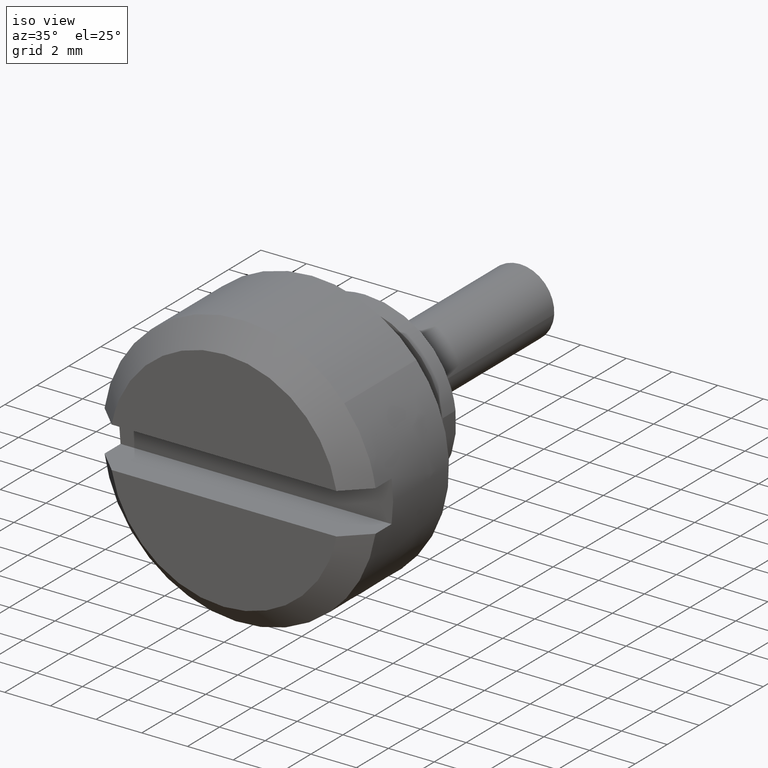
[diagram: clean part render]
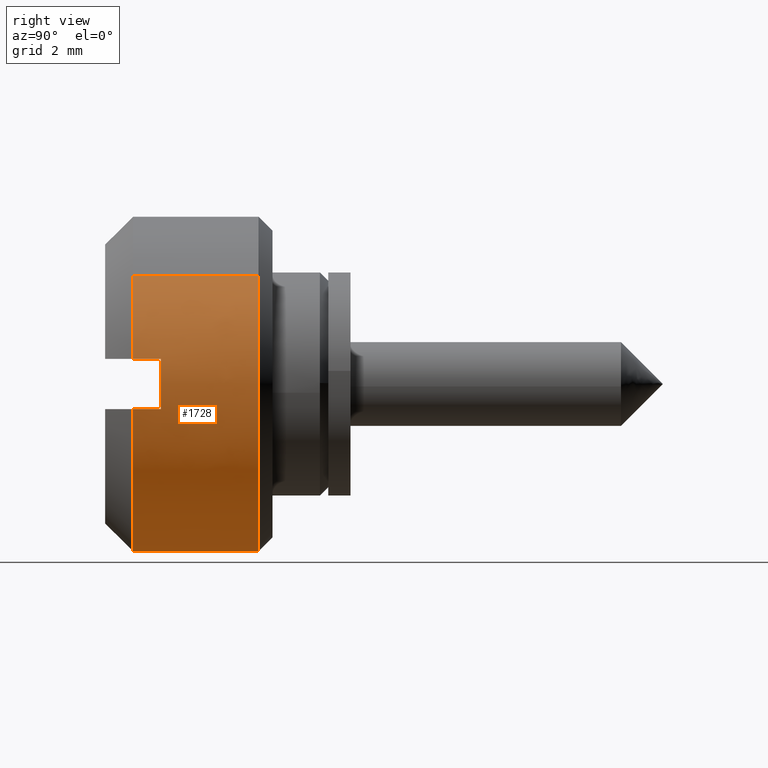
[diagram: tour spotlight — one face highlighted and labeled with its STEP entity id]
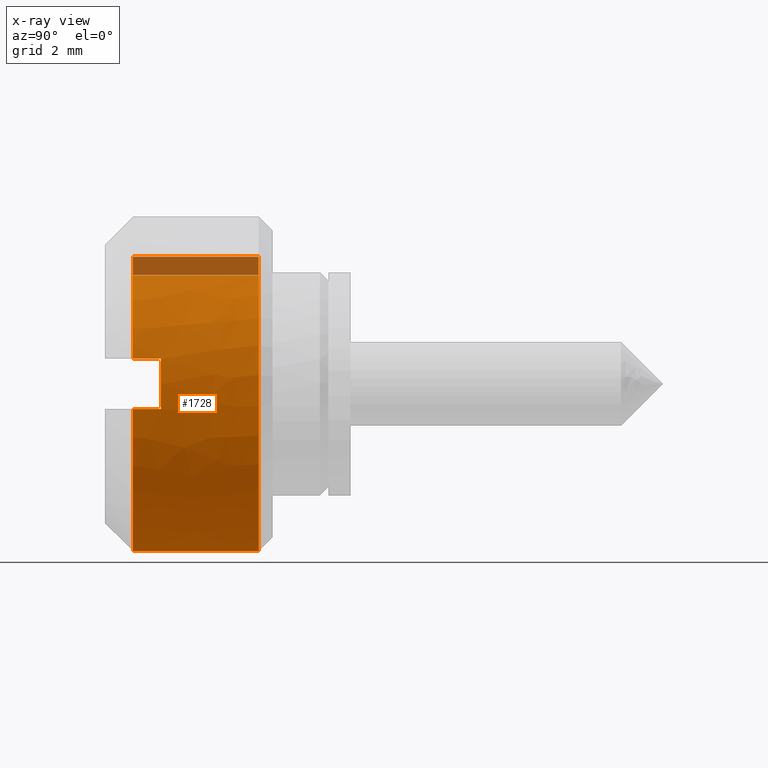
[diagram: x-ray of the same camera — body ghosted, this tour face saturated]
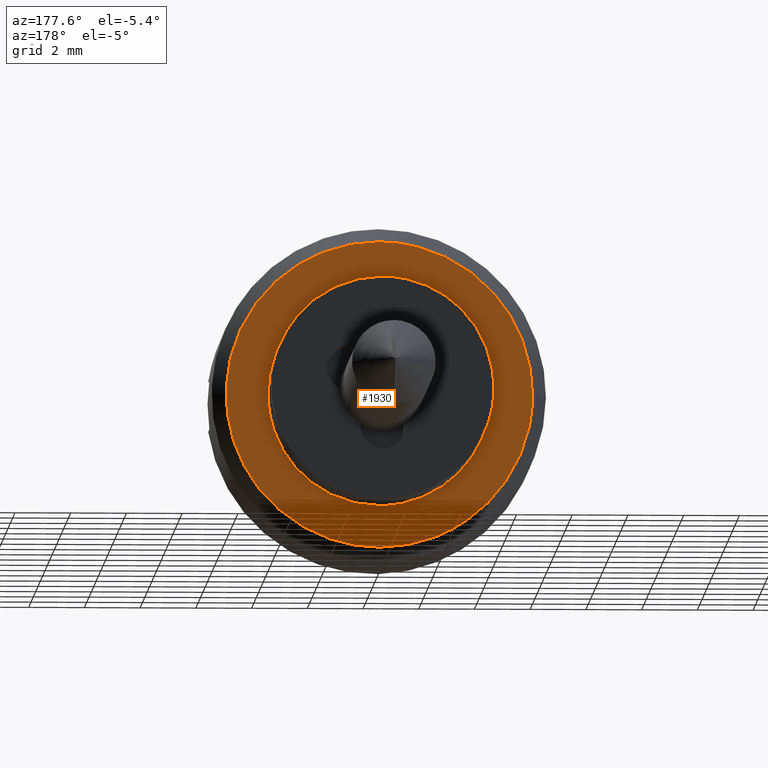
[diagram: tour spotlight — one face highlighted and labeled with its STEP entity id]
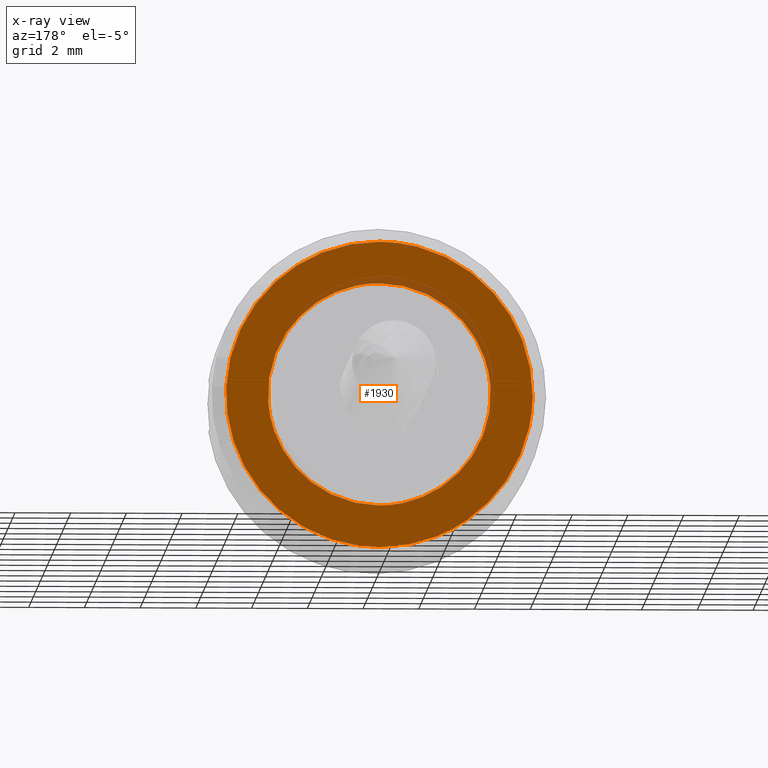
[diagram: x-ray of the same camera — body ghosted, this tour face saturated]
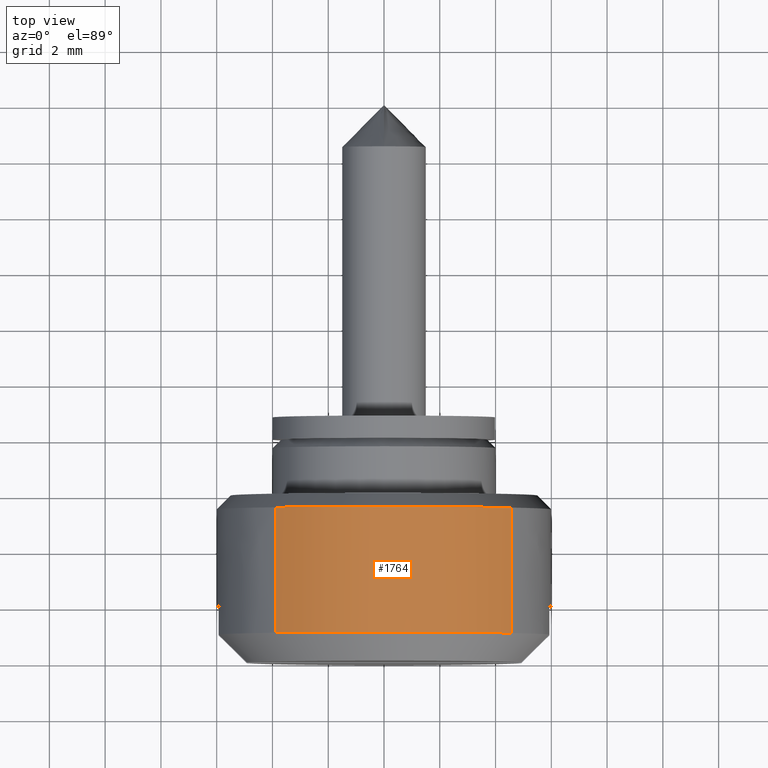
[diagram: tour spotlight — one face highlighted and labeled with its STEP entity id]
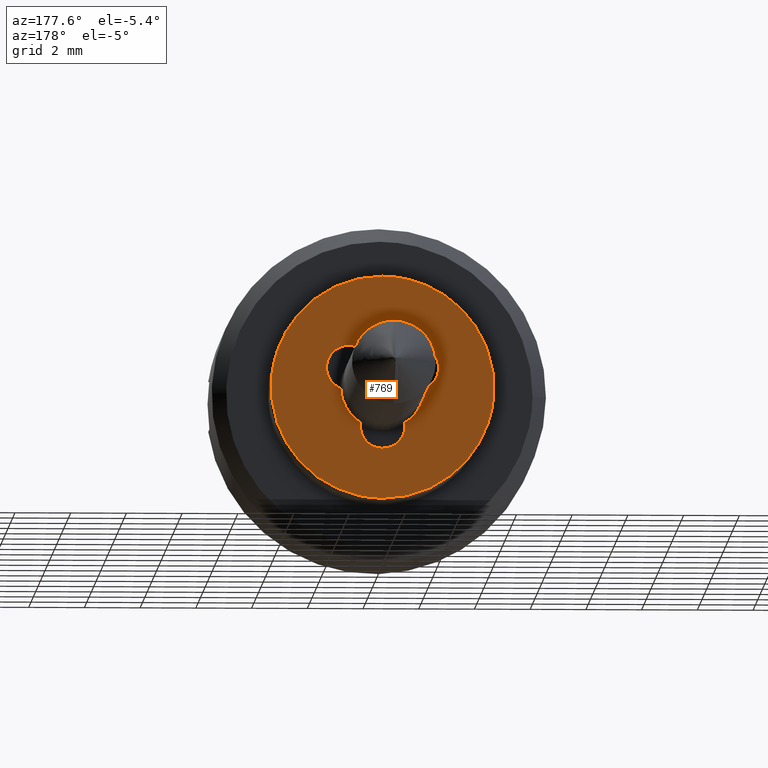
[diagram: tour spotlight — one face highlighted and labeled with its STEP entity id]
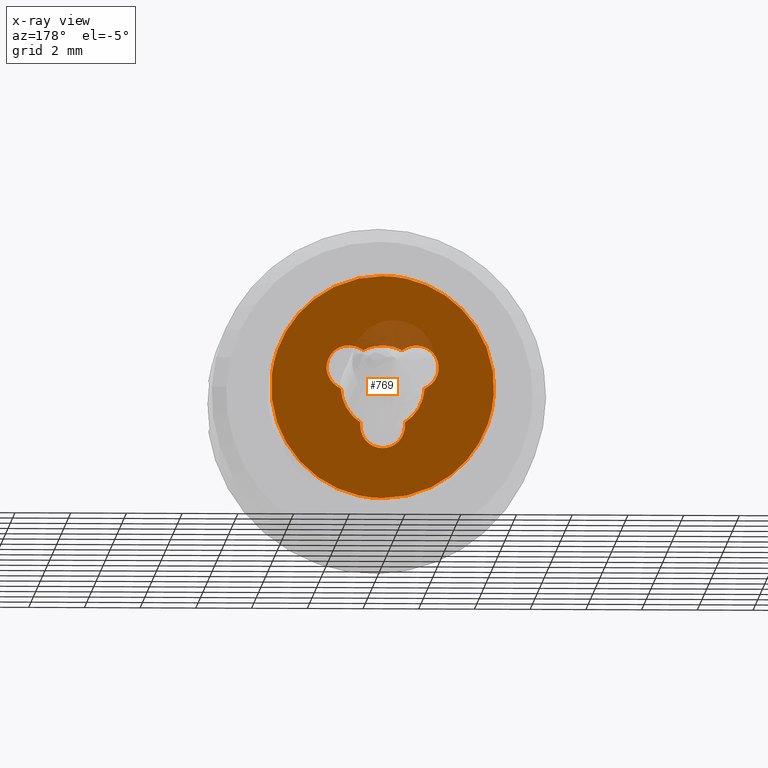
[diagram: x-ray of the same camera — body ghosted, this tour face saturated]
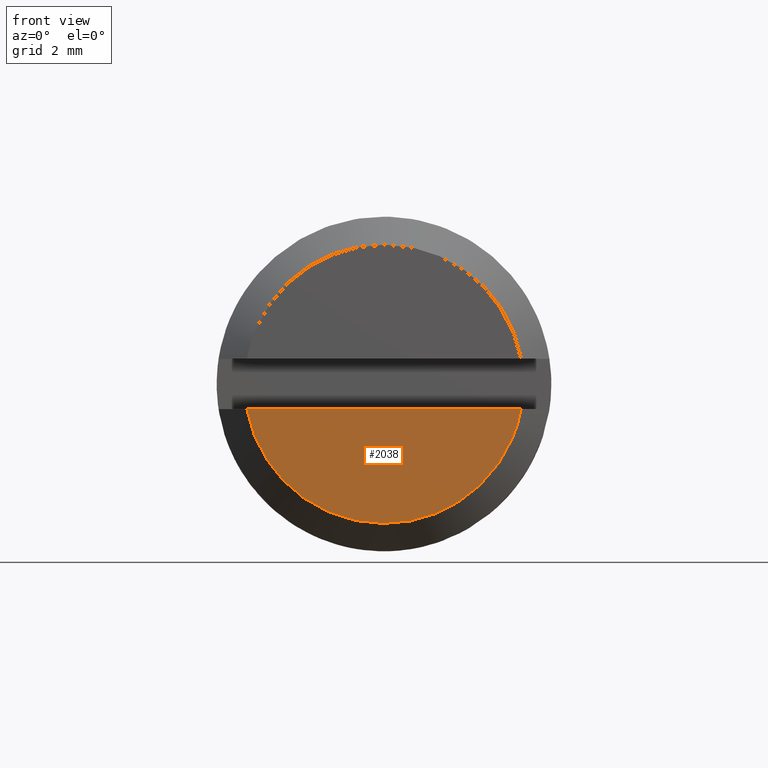
[diagram: tour spotlight — one face highlighted and labeled with its STEP entity id]
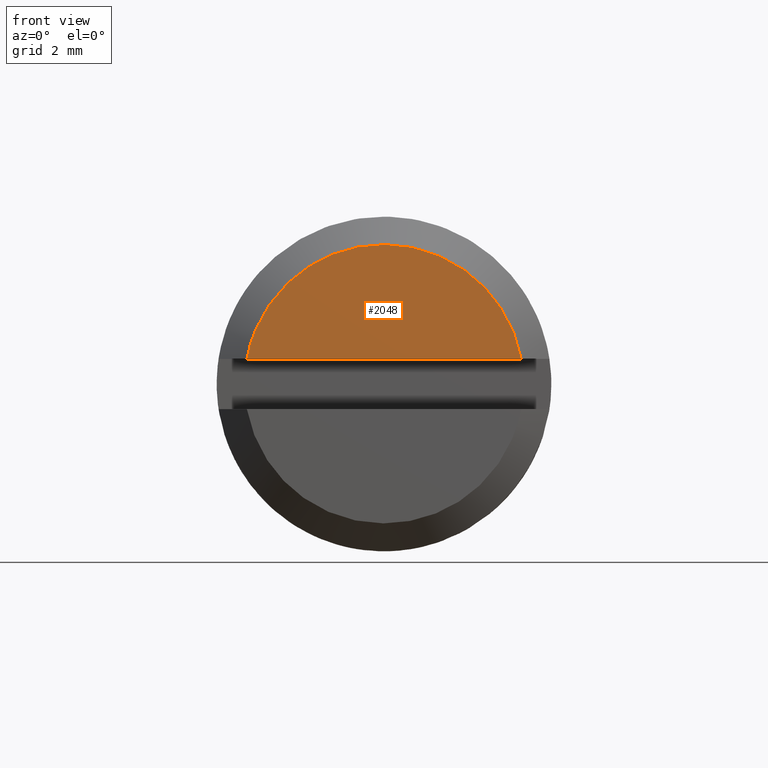
[diagram: tour spotlight — one face highlighted and labeled with its STEP entity id]
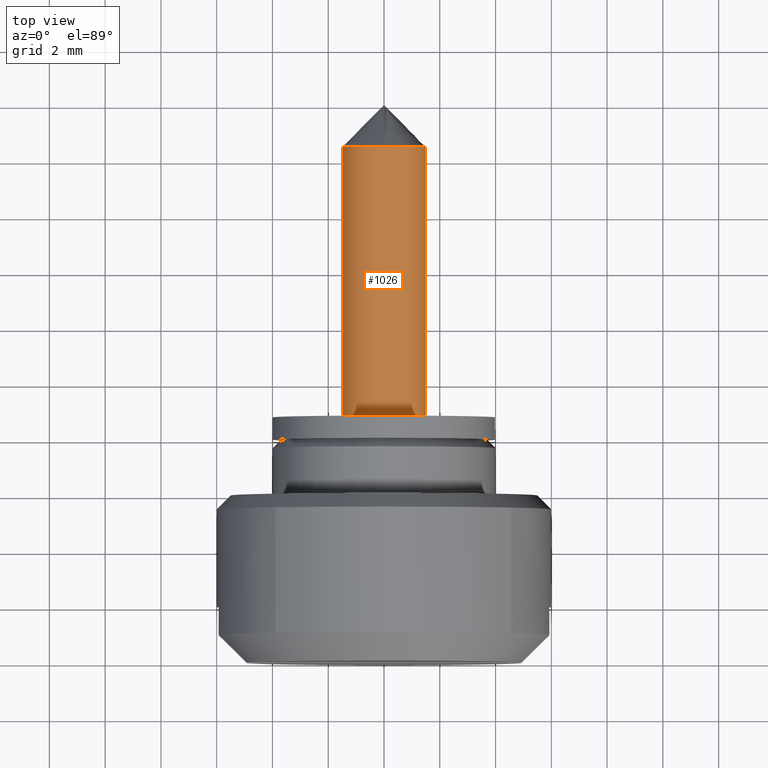
[diagram: tour spotlight — one face highlighted and labeled with its STEP entity id]
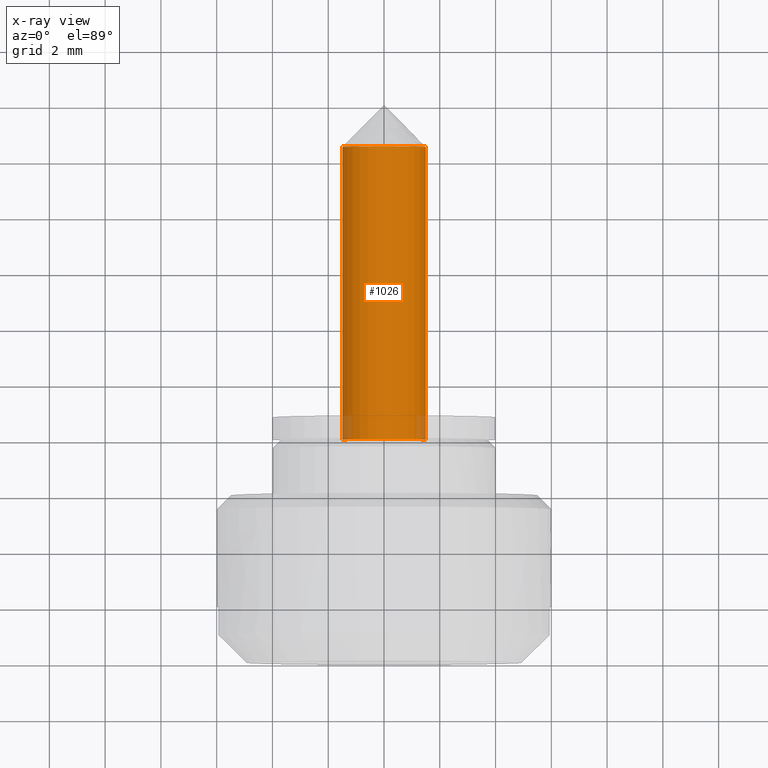
[diagram: x-ray of the same camera — body ghosted, this tour face saturated]
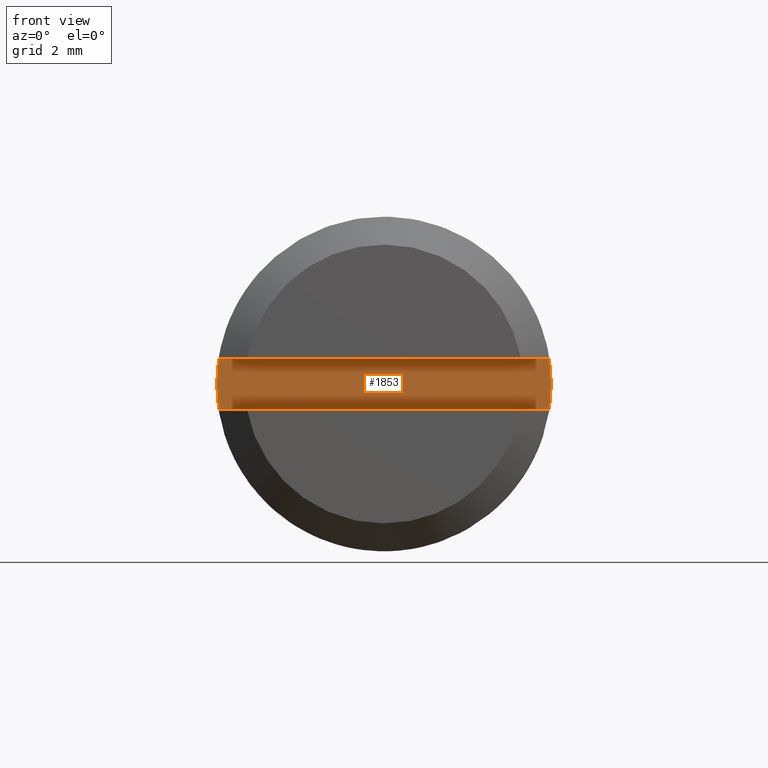
[diagram: tour spotlight — one face highlighted and labeled with its STEP entity id]
A machine part: a face-by-face anatomy tour. The part has 37 B-rep faces; the first image is the clean iso view, then the 8 largest visible faces are spotlighted one at a time (largest first), each with its STEP entity span.

Face 1 — right view, entity #1728. An x-ray twin of the same camera follows (body ghosted, this face saturated) — the face is partly hidden behind the body. In plain terms, the highlighted face is a freeform B-spline surface patch.
Definition (entity closure, byte-faithful):
#1269=CARTESIAN_POINT('',(-2.500000000000063,3.443907434926054,-4.913196676264802));
#1270=VERTEX_POINT('',#1269);
#1271=CARTESIAN_POINT('',(-2.500000000000060,0.0,-5.999999999999838));
#1272=VERTEX_POINT('',#1271);
#1273=CARTESIAN_POINT('',(-2.500000000000063,3.443907434926055,-4.913196676264802));
#1274=CARTESIAN_POINT('',(-2.500000000000060,1.893436471689136,-5.999999999999838));
#1275=CARTESIAN_POINT('',(-2.500000000000060,0.0,-5.999999999999838));
#1283=(BOUNDED_CURVE()B_SPLINE_CURVE(2,(#1273,#1274,#1275),.UNSPECIFIED.,.F.,.U.)B_SPLINE_CURVE_WITH_KNOTS((3,3),(0.901326273797124,1.0),.UNSPECIFIED.)CURVE()GEOMETRIC_REPRESENTATION_ITEM()RATIONAL_B_SPLINE_CURVE((0.860049271925870,0.884396538880490,1.0))REPRESENTATION_ITEM(''));
#1284=EDGE_CURVE('',#1270,#1272,#1283,.T.);
#1342=CARTESIAN_POINT('',(-2.500000000002377,5.999771538387197,-0.052359213007159));
#1343=VERTEX_POINT('',#1342);
#1349=CARTESIAN_POINT('',(-2.500000000000060,3.896687657252880,4.562436334001150));
#1350=VERTEX_POINT('',#1349);
#1351=CARTESIAN_POINT('',(-2.500000000000061,3.896687657252880,4.562436334001150));
#1352=CARTESIAN_POINT('',(-2.500000000000060,5.999999999999999,2.766038895498684));
#1353=CARTESIAN_POINT('',(-2.500000000000060,6.0,1.634248E-013));
#1354=CARTESIAN_POINT('',(-2.500000000000060,6.000000000000001,-0.026180104941118));
#1355=CARTESIAN_POINT('',(-2.500000000002377,5.999771538387197,-0.052359213007159));
#1363=(BOUNDED_CURVE()B_SPLINE_CURVE(2,(#1351,#1352,#1353,#1354,#1355),.UNSPECIFIED.,.F.,.U.)B_SPLINE_CURVE_WITH_KNOTS((3,2,3),(0.613143119433744,0.750000000000000,0.751539894335989),.UNSPECIFIED.)CURVE()GEOMETRIC_REPRESENTATION_ITEM()RATIONAL_B_SPLINE_CURVE((0.854871040955272,0.839662190936725,1.0,0.998195901565198,0.996414028098086))REPRESENTATION_ITEM(''));
#1364=EDGE_CURVE('',#1350,#1343,#1363,.T.);
#1381=CARTESIAN_POINT('',(-2.500000000000060,-4.562436122653258,3.896687904709550));
#1382=VERTEX_POINT('',#1381);
#1396=CARTESIAN_POINT('',(-2.500000000000060,0.0,-5.999999999999838));
#1397=CARTESIAN_POINT('',(-2.500000000000060,-6.0,-5.999999999999838));
#1398=CARTESIAN_POINT('',(-2.500000000000060,-6.0,1.634248E-013));
#1399=CARTESIAN_POINT('',(-2.500000000000061,-6.000000000000001,2.213516287035346));
#1400=CARTESIAN_POINT('',(-2.500000000000060,-4.562436122653258,3.896687904709550));
#1408=(BOUNDED_CURVE()B_SPLINE_CURVE(2,(#1396,#1397,#1398,#1399,#1400),.UNSPECIFIED.,.F.,.U.)B_SPLINE_CURVE_WITH_KNOTS((3,2,3),(0.0,0.250000000000000,0.363143135826714),.UNSPECIFIED.)CURVE()GEOMETRIC_REPRESENTATION_ITEM()RATIONAL_B_SPLINE_CURVE((1.0,0.707106781186548,1.0,0.867444571044264,0.854871037311786))REPRESENTATION_ITEM(''));
#1409=EDGE_CURVE('',#1272,#1382,#1408,.T.);
#1428=CARTESIAN_POINT('',(-2.500000000002377,5.999771538387197,-0.052359213007159));
#1429=CARTESIAN_POINT('',(-2.500000000000060,5.972821276211071,-3.140553374122430));
#1430=CARTESIAN_POINT('',(-2.500000000000062,3.443907434926053,-4.913196676264802));
#1438=(BOUNDED_CURVE()B_SPLINE_CURVE(2,(#1428,#1429,#1430),.UNSPECIFIED.,.F.,.U.)B_SPLINE_CURVE_WITH_KNOTS((3,3),(0.751539894335989,0.901326273797123),.UNSPECIFIED.)CURVE()GEOMETRIC_REPRESENTATION_ITEM()RATIONAL_B_SPLINE_CURVE((0.996414028098088,0.823090203820872,0.860049271925869))REPRESENTATION_ITEM(''));
#1439=EDGE_CURVE('',#1343,#1270,#1438,.T.);
#1583=CARTESIAN_POINT('',(-7.112500000000000,-4.562435793600185,3.896688289981264));
#1584=CARTESIAN_POINT('',(-7.112500000000000,-8.459124083581285,-0.665747503618921));
#1585=CARTESIAN_POINT('',(-7.112500000000000,-3.896688289981100,-4.562435793600021));
#1586=CARTESIAN_POINT('',(-7.112500000000000,0.665747503619084,-8.459124083581122));
#1587=CARTESIAN_POINT('',(-7.112500000000000,4.562435793600185,-3.896688289980937));
#1588=CARTESIAN_POINT('',(-7.112500000000000,8.459124083581285,0.665747503619248));
#1589=CARTESIAN_POINT('',(-7.112500000000000,3.896688289981100,4.562435793600348));
#1590=CARTESIAN_POINT('',(-2.384687500000061,-4.562435793600185,3.896688289981264));
#1591=CARTESIAN_POINT('',(-2.384687500000061,-8.459124083581285,-0.665747503618921));
#1592=CARTESIAN_POINT('',(-2.384687500000061,-3.896688289981100,-4.562435793600021));
#1593=CARTESIAN_POINT('',(-2.384687500000061,0.665747503619084,-8.459124083581122));
#1594=CARTESIAN_POINT('',(-2.384687500000061,4.562435793600185,-3.896688289980937));
#1595=CARTESIAN_POINT('',(-2.384687500000061,8.459124083581285,0.665747503619248));
#1596=CARTESIAN_POINT('',(-2.384687500000060,3.896688289981100,4.562435793600348));
#1604=(BOUNDED_SURFACE()B_SPLINE_SURFACE(2,1,((#1583,#1590),(#1584,#1591),(#1585,#1592),(#1586,#1593),(#1587,#1594),(#1588,#1595),(#1589,#1596)),.UNSPECIFIED.,.F.,.F.,.U.)B_SPLINE_SURFACE_WITH_KNOTS((3,2,2,3),(2,2),(0.0,9.941125496954276,19.882250993908549,29.823376490862831),(0.0,4.727812499999940),.UNSPECIFIED.)GEOMETRIC_REPRESENTATION_ITEM()RATIONAL_B_SPLINE_SURFACE(((1.0,1.0),(0.707106781186548,0.707106781186548),(1.0,1.0),(0.707106781186548,0.707106781186548),(1.0,1.0),(0.707106781186548,0.707106781186548),(1.0,1.0)))REPRESENTATION_ITEM('')SURFACE());
#1605=CARTESIAN_POINT('',(-7.0,-4.562435866765446,3.896688204315749));
#1606=VERTEX_POINT('',#1605);
#1607=CARTESIAN_POINT('',(-7.0,-5.932115979985571,0.900000000000077));
#1608=VERTEX_POINT('',#1607);
#1609=CARTESIAN_POINT('',(-7.0,-4.562435866765446,3.896688204315749));
#1610=CARTESIAN_POINT('',(-7.0,-5.675123654122992,2.593898092203646));
#1611=CARTESIAN_POINT('',(-7.0,-5.932115979985571,0.900000000000077));
#1619=(BOUNDED_CURVE()B_SPLINE_CURVE(2,(#1609,#1610,#1611),.UNSPECIFIED.,.F.,.U.)B_SPLINE_CURVE_WITH_KNOTS((3,3),(0.801962143074433,1.0),.UNSPECIFIED.)CURVE()GEOMETRIC_REPRESENTATION_ITEM()RATIONAL_B_SPLINE_CURVE((0.884364885605232,0.904263566603559,1.0))REPRESENTATION_ITEM(''));
#1620=EDGE_CURVE('',#1606,#1608,#1619,.T.);
#1621=ORIENTED_EDGE('',*,*,#1620,.T.);
#1622=CARTESIAN_POINT('',(-6.0,-5.932115979985571,0.900000000000077));
#1623=VERTEX_POINT('',#1622);
#1624=CARTESIAN_POINT('',(-7.0,-5.932115979985571,0.900000000000077));
#1625=CARTESIAN_POINT('',(-6.0,-5.932115979985571,0.900000000000077));
#1626=QUASI_UNIFORM_CURVE('',1,(#1624,#1625),.UNSPECIFIED.,.F.,.U.);
#1627=EDGE_CURVE('',#1608,#1623,#1626,.T.);
#1628=ORIENTED_EDGE('',*,*,#1627,.T.);
#1629=CARTESIAN_POINT('',(-6.0,-5.932115979985550,-0.899999999999913));
#1630=VERTEX_POINT('',#1629);
#1631=CARTESIAN_POINT('',(-6.0,-5.932115979985571,0.900000000000076));
#1632=CARTESIAN_POINT('',(-6.0,-6.068660849090083,8.178441E-014));
#1633=CARTESIAN_POINT('',(-6.0,-5.932115979985545,-0.899999999999912));
#1641=(BOUNDED_CURVE()B_SPLINE_CURVE(2,(#1631,#1632,#1633),.UNSPECIFIED.,.F.,.U.)CURVE()GEOMETRIC_REPRESENTATION_ITEM()QUASI_UNIFORM_CURVE()RATIONAL_B_SPLINE_CURVE((1.0,0.988685996664259,1.0))REPRESENTATION_ITEM(''));
#1642=EDGE_CURVE('',#1623,#1630,#1641,.T.);
#1643=ORIENTED_EDGE('',*,*,#1642,.T.);
#1644=CARTESIAN_POINT('',(-7.0,-5.932115979985531,-0.900000000000000));
#1645=VERTEX_POINT('',#1644);
#1646=CARTESIAN_POINT('',(-6.0,-5.932115979985550,-0.899999999999913));
#1647=CARTESIAN_POINT('',(-7.0,-5.932115979985531,-0.900000000000000));
#1648=QUASI_UNIFORM_CURVE('',1,(#1646,#1647),.UNSPECIFIED.,.F.,.U.);
#1649=EDGE_CURVE('',#1630,#1645,#1648,.T.);
#1650=ORIENTED_EDGE('',*,*,#1649,.T.);
#1651=CARTESIAN_POINT('',(-7.0,5.932115979985531,-0.900000000000000));
#1652=VERTEX_POINT('',#1651);
#1653=CARTESIAN_POINT('',(-7.0,-5.932115979985533,-0.899999999999996));
#1654=CARTESIAN_POINT('',(-7.000000000000001,-5.158361721726432,-5.999999999999838));
#1655=CARTESIAN_POINT('',(-7.0,0.0,-5.999999999999838));
#1656=CARTESIAN_POINT('',(-7.000000000000001,5.158361721726429,-5.999999999999838));
#1657=CARTESIAN_POINT('',(-7.0,5.932115979985533,-0.899999999999999));
#1665=(BOUNDED_CURVE()B_SPLINE_CURVE(2,(#1653,#1654,#1655,#1656,#1657),.UNSPECIFIED.,.F.,.U.)B_SPLINE_CURVE_WITH_KNOTS((3,2,3),(0.0,0.500000000000000,1.0),.UNSPECIFIED.)CURVE()GEOMETRIC_REPRESENTATION_ITEM()RATIONAL_B_SPLINE_CURVE((1.0,0.758287544405164,1.0,0.758287544405164,1.0))REPRESENTATION_ITEM(''));
#1666=EDGE_CURVE('',#1645,#1652,#1665,.T.);
#1667=ORIENTED_EDGE('',*,*,#1666,.T.);
#1668=CARTESIAN_POINT('',(-6.0,5.932115979985550,-0.899999999999913));
#1669=VERTEX_POINT('',#1668);
#1670=CARTESIAN_POINT('',(-7.0,5.932115979985531,-0.900000000000000));
#1671=CARTESIAN_POINT('',(-6.0,5.932115979985550,-0.899999999999913));
#1672=QUASI_UNIFORM_CURVE('',1,(#1670,#1671),.UNSPECIFIED.,.F.,.U.);
#1673=EDGE_CURVE('',#1652,#1669,#1672,.T.);
#1674=ORIENTED_EDGE('',*,*,#1673,.T.);
#1675=CARTESIAN_POINT('',(-6.0,5.932115979985571,0.900000000000077));
#1676=VERTEX_POINT('',#1675);
#1677=CARTESIAN_POINT('',(-6.0,5.932115979985545,-0.899999999999914));
#1678=CARTESIAN_POINT('',(-6.0,6.068660849090083,7.885706E-014));
#1679=CARTESIAN_POINT('',(-6.0,5.932115979985571,0.900000000000075));
#1687=(BOUNDED_CURVE()B_SPLINE_CURVE(2,(#1677,#1678,#1679),.UNSPECIFIED.,.F.,.U.)CURVE()GEOMETRIC_REPRESENTATION_ITEM()QUASI_UNIFORM_CURVE()RATIONAL_B_SPLINE_CURVE((1.0,0.988685996664259,1.0))REPRESENTATION_ITEM(''));
#1688=EDGE_CURVE('',#1669,#1676,#1687,.T.);
#1689=ORIENTED_EDGE('',*,*,#1688,.T.);
#1690=CARTESIAN_POINT('',(-7.0,5.932115979985571,0.900000000000077));
#1691=VERTEX_POINT('',#1690);
#1692=CARTESIAN_POINT('',(-6.0,5.932115979985571,0.900000000000077));
#1693=CARTESIAN_POINT('',(-7.0,5.932115979985571,0.900000000000077));
#1694=QUASI_UNIFORM_CURVE('',1,(#1692,#1693),.UNSPECIFIED.,.F.,.U.);
#1695=EDGE_CURVE('',#1676,#1691,#1694,.T.);
#1696=ORIENTED_EDGE('',*,*,#1695,.T.);
#1697=CARTESIAN_POINT('',(-7.0,3.896688280943040,4.562435801319582));
#1698=VERTEX_POINT('',#1697);
#1699=CARTESIAN_POINT('',(-7.0,5.932115979985571,0.900000000000077));
#1700=CARTESIAN_POINT('',(-7.000000000000001,5.596755528840100,3.110441212550539));
#1701=CARTESIAN_POINT('',(-7.0,3.896688280943040,4.562435801319582));
#1709=(BOUNDED_CURVE()B_SPLINE_CURVE(2,(#1699,#1700,#1701),.UNSPECIFIED.,.F.,.U.)B_SPLINE_CURVE_WITH_KNOTS((3,3),(0.0,0.251097610024567),.UNSPECIFIED.)CURVE()GEOMETRIC_REPRESENTATION_ITEM()RATIONAL_B_SPLINE_CURVE((1.0,0.878613160173928,0.879146101822902))REPRESENTATION_ITEM(''));
#1710=EDGE_CURVE('',#1691,#1698,#1709,.T.);
#1711=ORIENTED_EDGE('',*,*,#1710,.T.);
#1712=CARTESIAN_POINT('',(-7.0,3.896688280943040,4.562435801319582));
#1713=CARTESIAN_POINT('',(-2.500000000000060,3.896687657252880,4.562436334001150));
#1714=QUASI_UNIFORM_CURVE('',1,(#1712,#1713),.UNSPECIFIED.,.F.,.U.);
#1715=EDGE_CURVE('',#1698,#1350,#1714,.T.);
#1716=ORIENTED_EDGE('',*,*,#1715,.T.);
#1717=ORIENTED_EDGE('',*,*,#1364,.T.);
#1718=ORIENTED_EDGE('',*,*,#1439,.T.);
#1719=ORIENTED_EDGE('',*,*,#1284,.T.);
#1720=ORIENTED_EDGE('',*,*,#1409,.T.);
#1721=CARTESIAN_POINT('',(-7.0,-4.562435866765446,3.896688204315749));
#1722=CARTESIAN_POINT('',(-2.500000000000060,-4.562436122653258,3.896687904709550));
#1723=QUASI_UNIFORM_CURVE('',1,(#1721,#1722),.UNSPECIFIED.,.F.,.U.);
#1724=EDGE_CURVE('',#1606,#1382,#1723,.T.);
#1725=ORIENTED_EDGE('',*,*,#1724,.F.);
#1726=EDGE_LOOP('',(#1621,#1628,#1643,#1650,#1667,#1674,#1689,#1696,#1711,#1716,#1717,#1718,#1719,#1720,#1725));
#1727=FACE_OUTER_BOUND('',#1726,.T.);
#1728=ADVANCED_FACE('',(#1727),#1604,.T.);

Face 2 — auxiliary view, entity #1930. An x-ray twin of the same camera follows (body ghosted, this face saturated) — the face is partly hidden behind the body. In plain terms, the highlighted face is a freeform B-spline surface patch.
Definition (entity closure, byte-faithful):
#1286=CARTESIAN_POINT('',(-2.000000000000192,3.156915148685537,-4.503763619907270));
#1287=VERTEX_POINT('',#1286);
#1293=CARTESIAN_POINT('',(-2.000000000000030,0.0,-5.499999999999837));
#1294=VERTEX_POINT('',#1293);
#1295=CARTESIAN_POINT('',(-2.000000000000030,0.0,-5.499999999999837));
#1296=CARTESIAN_POINT('',(-2.000000000000030,1.735650099052702,-5.499999999999838));
#1297=CARTESIAN_POINT('',(-2.000000000000191,3.156915148685537,-4.503763619907269));
#1305=(BOUNDED_CURVE()B_SPLINE_CURVE(2,(#1295,#1296,#1297),.UNSPECIFIED.,.F.,.U.)B_SPLINE_CURVE_WITH_KNOTS((3,3),(0.0,0.098673726203093),.UNSPECIFIED.)CURVE()GEOMETRIC_REPRESENTATION_ITEM()RATIONAL_B_SPLINE_CURVE((1.0,0.884396538880235,0.860049271925763))REPRESENTATION_ITEM(''));
#1306=EDGE_CURVE('',#1294,#1287,#1305,.T.);
#1308=CARTESIAN_POINT('',(-2.000000000000030,0.0,5.500000000000163));
#1309=VERTEX_POINT('',#1308);
#1310=CARTESIAN_POINT('',(-2.000000000000030,0.0,5.500000000000163));
#1311=CARTESIAN_POINT('',(-2.000000000000029,-5.500000000000001,5.500000000000163));
#1312=CARTESIAN_POINT('',(-2.000000000000030,-5.500000000000000,1.634248E-013));
#1313=CARTESIAN_POINT('',(-2.000000000000029,-5.500000000000001,-5.499999999999837));
#1314=CARTESIAN_POINT('',(-2.000000000000030,0.0,-5.499999999999837));
#1322=(BOUNDED_CURVE()B_SPLINE_CURVE(2,(#1310,#1311,#1312,#1313,#1314),.UNSPECIFIED.,.F.,.U.)B_SPLINE_CURVE_WITH_KNOTS((3,2,3),(0.500000000000000,0.750000000000000,1.0),.UNSPECIFIED.)CURVE()GEOMETRIC_REPRESENTATION_ITEM()RATIONAL_B_SPLINE_CURVE((1.0,0.707106781186548,1.0,0.707106781186548,1.0))REPRESENTATION_ITEM(''));
#1323=EDGE_CURVE('',#1309,#1294,#1322,.T.);
#1325=CARTESIAN_POINT('',(-2.000000000002609,5.499790576855370,-0.047995945259935));
#1326=VERTEX_POINT('',#1325);
#1327=CARTESIAN_POINT('',(-2.000000000002610,5.499790576855370,-0.047995945259935));
#1328=CARTESIAN_POINT('',(-2.000000000000030,5.500000000000000,-0.023998429532715));
#1329=CARTESIAN_POINT('',(-2.000000000000030,5.500000000000000,1.634248E-013));
#1330=CARTESIAN_POINT('',(-2.000000000000029,5.500000000000001,5.500000000000163));
#1331=CARTESIAN_POINT('',(-2.000000000000030,0.0,5.500000000000163));
#1339=(BOUNDED_CURVE()B_SPLINE_CURVE(2,(#1327,#1328,#1329,#1330,#1331),.UNSPECIFIED.,.F.,.U.)B_SPLINE_CURVE_WITH_KNOTS((3,2,3),(0.248460105663795,0.250000000000000,0.500000000000000),.UNSPECIFIED.)CURVE()GEOMETRIC_REPRESENTATION_ITEM()RATIONAL_B_SPLINE_CURVE((0.996414028097587,0.998195901564945,1.0,0.707106781186548,1.0))REPRESENTATION_ITEM(''));
#1340=EDGE_CURVE('',#1326,#1309,#1339,.T.);
#1442=CARTESIAN_POINT('',(-2.000000000000192,3.156915148685537,-4.503763619907269));
#1443=CARTESIAN_POINT('',(-2.000000000000030,5.475086169856688,-2.878840592943050));
#1444=CARTESIAN_POINT('',(-2.000000000002609,5.499790576855370,-0.047995945259935));
#1452=(BOUNDED_CURVE()B_SPLINE_CURVE(2,(#1442,#1443,#1444),.UNSPECIFIED.,.F.,.U.)B_SPLINE_CURVE_WITH_KNOTS((3,3),(0.098673726203093,0.248460105663795),.UNSPECIFIED.)CURVE()GEOMETRIC_REPRESENTATION_ITEM()RATIONAL_B_SPLINE_CURVE((0.860049271925763,0.823090203821176,0.996414028097587))REPRESENTATION_ITEM(''));
#1453=EDGE_CURVE('',#1287,#1326,#1452,.T.);
#1477=CARTESIAN_POINT('',(-2.0,0.0,-3.999999999999837));
#1478=VERTEX_POINT('',#1477);
#1479=CARTESIAN_POINT('',(-2.000000000000028,-3.987669528953986,-0.313833917615145));
#1480=VERTEX_POINT('',#1479);
#1481=CARTESIAN_POINT('',(-2.0,0.0,-3.999999999999837));
#1482=CARTESIAN_POINT('',(-2.000000000000000,-3.697564259645009,-3.999999999999838));
#1483=CARTESIAN_POINT('',(-2.000000000000028,-3.987669528953986,-0.313833917615145));
#1491=(BOUNDED_CURVE()B_SPLINE_CURVE(2,(#1481,#1482,#1483),.UNSPECIFIED.,.F.,.U.)B_SPLINE_CURVE_WITH_KNOTS((3,3),(0.0,0.236331406612505),.UNSPECIFIED.)CURVE()GEOMETRIC_REPRESENTATION_ITEM()RATIONAL_B_SPLINE_CURVE((1.0,0.723120534442211,0.969723577343548))REPRESENTATION_ITEM(''));
#1492=EDGE_CURVE('',#1478,#1480,#1491,.T.);
#1494=CARTESIAN_POINT('',(-2.000000000000028,3.987669528953986,0.313833917615472));
#1495=VERTEX_POINT('',#1494);
#1496=CARTESIAN_POINT('',(-2.000000000000028,3.987669528953986,0.313833917615472));
#1497=CARTESIAN_POINT('',(-2.000000000000000,4.000000000000001,0.157159189662551));
#1498=CARTESIAN_POINT('',(-2.0,4.0,1.634248E-013));
#1499=CARTESIAN_POINT('',(-2.000000000000000,4.000000000000000,-3.999999999999837));
#1500=CARTESIAN_POINT('',(-2.0,0.0,-3.999999999999837));
#1508=(BOUNDED_CURVE()B_SPLINE_CURVE(2,(#1496,#1497,#1498,#1499,#1500),.UNSPECIFIED.,.F.,.U.)B_SPLINE_CURVE_WITH_KNOTS((3,2,3),(0.736331406612505,0.750000000000000,1.0),.UNSPECIFIED.)CURVE()GEOMETRIC_REPRESENTATION_ITEM()RATIONAL_B_SPLINE_CURVE((0.969723577343548,0.983986246744337,1.0,0.707106781186548,1.0))REPRESENTATION_ITEM(''));
#1509=EDGE_CURVE('',#1495,#1478,#1508,.T.);
#1545=CARTESIAN_POINT('',(-2.0,0.0,4.000000000000163));
#1546=VERTEX_POINT('',#1545);
#1547=CARTESIAN_POINT('',(-2.000000000000028,-3.987669528953986,-0.313833917615145));
#1548=CARTESIAN_POINT('',(-2.000000000000000,-4.0,-0.157159189662224));
#1549=CARTESIAN_POINT('',(-2.0,-4.0,1.634248E-013));
#1550=CARTESIAN_POINT('',(-2.000000000000000,-4.000000000000000,4.000000000000164));
#1551=CARTESIAN_POINT('',(-2.0,0.0,4.000000000000163));
#1559=(BOUNDED_CURVE()B_SPLINE_CURVE(2,(#1547,#1548,#1549,#1550,#1551),.UNSPECIFIED.,.F.,.U.)B_SPLINE_CURVE_WITH_KNOTS((3,2,3),(0.236331406612505,0.250000000000000,0.500000000000000),.UNSPECIFIED.)CURVE()GEOMETRIC_REPRESENTATION_ITEM()RATIONAL_B_SPLINE_CURVE((0.969723577343548,0.983986246744337,1.0,0.707106781186548,1.0))REPRESENTATION_ITEM(''));
#1560=EDGE_CURVE('',#1480,#1546,#1559,.T.);
#1567=CARTESIAN_POINT('',(-2.0,0.0,4.000000000000163));
#1568=CARTESIAN_POINT('',(-2.000000000000000,3.697564259645008,4.000000000000163));
#1569=CARTESIAN_POINT('',(-2.000000000000028,3.987669528953986,0.313833917615472));
#1577=(BOUNDED_CURVE()B_SPLINE_CURVE(2,(#1567,#1568,#1569),.UNSPECIFIED.,.F.,.U.)B_SPLINE_CURVE_WITH_KNOTS((3,3),(0.500000000000000,0.736331406612505),.UNSPECIFIED.)CURVE()GEOMETRIC_REPRESENTATION_ITEM()RATIONAL_B_SPLINE_CURVE((1.0,0.723120534442211,0.969723577343548))REPRESENTATION_ITEM(''));
#1578=EDGE_CURVE('',#1546,#1495,#1577,.T.);
#1913=CARTESIAN_POINT('',(-2.000000000000030,-6.049439524952615,-6.049449978679703));
#1914=CARTESIAN_POINT('',(-2.000000000000030,6.049230536166869,-6.049449978679703));
#1915=CARTESIAN_POINT('',(-2.000000000000030,-6.049439524952615,6.049450273723021));
#1916=CARTESIAN_POINT('',(-2.000000000000030,6.049230536166869,6.049450273723021));
#1917=B_SPLINE_SURFACE_WITH_KNOTS('',1,1,((#1913,#1915),(#1914,#1916)),.UNSPECIFIED.,.F.,.F.,.U.,(2,2),(2,2),(0.0,12.098670061119490),(0.0,12.098900252402720),.UNSPECIFIED.);
#1918=ORIENTED_EDGE('',*,*,#1306,.T.);
#1919=ORIENTED_EDGE('',*,*,#1453,.T.);
#1920=ORIENTED_EDGE('',*,*,#1340,.T.);
#1921=ORIENTED_EDGE('',*,*,#1323,.T.);
#1922=EDGE_LOOP('',(#1918,#1919,#1920,#1921));
#1923=FACE_OUTER_BOUND('',#1922,.T.);
#1924=ORIENTED_EDGE('',*,*,#1578,.T.);
#1925=ORIENTED_EDGE('',*,*,#1509,.T.);
#1926=ORIENTED_EDGE('',*,*,#1492,.T.);
#1927=ORIENTED_EDGE('',*,*,#1560,.T.);
#1928=EDGE_LOOP('',(#1924,#1925,#1926,#1927));
#1929=FACE_BOUND('',#1928,.T.);
#1930=ADVANCED_FACE('',(#1923,#1929),#1917,.T.);

Face 3 — top view, entity #1764. In plain terms, the highlighted face is a freeform B-spline surface patch.
Definition (entity closure, byte-faithful):
#1349=CARTESIAN_POINT('',(-2.500000000000060,3.896687657252880,4.562436334001150));
#1350=VERTEX_POINT('',#1349);
#1366=CARTESIAN_POINT('',(-2.500000000000060,0.0,6.000000000000163));
#1367=VERTEX_POINT('',#1366);
#1368=CARTESIAN_POINT('',(-2.500000000000060,0.0,6.000000000000163));
#1369=CARTESIAN_POINT('',(-2.500000000000060,2.213515917317359,6.000000000000163));
#1370=CARTESIAN_POINT('',(-2.500000000000060,3.896687657252880,4.562436334001150));
#1378=(BOUNDED_CURVE()B_SPLINE_CURVE(2,(#1368,#1369,#1370),.UNSPECIFIED.,.F.,.U.)B_SPLINE_CURVE_WITH_KNOTS((3,3),(0.500000000000000,0.613143119433745),.UNSPECIFIED.)CURVE()GEOMETRIC_REPRESENTATION_ITEM()RATIONAL_B_SPLINE_CURVE((1.0,0.867444590249822,0.854871040955271))REPRESENTATION_ITEM(''));
#1379=EDGE_CURVE('',#1367,#1350,#1378,.T.);
#1381=CARTESIAN_POINT('',(-2.500000000000060,-4.562436122653258,3.896687904709550));
#1382=VERTEX_POINT('',#1381);
#1383=CARTESIAN_POINT('',(-2.500000000000060,-4.562436122653259,3.896687904709550));
#1384=CARTESIAN_POINT('',(-2.500000000000060,-2.766038500909790,6.000000000000164));
#1385=CARTESIAN_POINT('',(-2.500000000000060,0.0,6.000000000000163));
#1393=(BOUNDED_CURVE()B_SPLINE_CURVE(2,(#1383,#1384,#1385),.UNSPECIFIED.,.F.,.U.)B_SPLINE_CURVE_WITH_KNOTS((3,3),(0.363143135826714,0.500000000000000),.UNSPECIFIED.)CURVE()GEOMETRIC_REPRESENTATION_ITEM()RATIONAL_B_SPLINE_CURVE((0.854871037311786,0.839662210142283,1.0))REPRESENTATION_ITEM(''));
#1394=EDGE_CURVE('',#1382,#1367,#1393,.T.);
#1605=CARTESIAN_POINT('',(-7.0,-4.562435866765446,3.896688204315749));
#1606=VERTEX_POINT('',#1605);
#1697=CARTESIAN_POINT('',(-7.0,3.896688280943040,4.562435801319582));
#1698=VERTEX_POINT('',#1697);
#1712=CARTESIAN_POINT('',(-7.0,3.896688280943040,4.562435801319582));
#1713=CARTESIAN_POINT('',(-2.500000000000060,3.896687657252880,4.562436334001150));
#1714=QUASI_UNIFORM_CURVE('',1,(#1712,#1713),.UNSPECIFIED.,.F.,.U.);
#1715=EDGE_CURVE('',#1698,#1350,#1714,.T.);
#1721=CARTESIAN_POINT('',(-7.0,-4.562435866765446,3.896688204315749));
#1722=CARTESIAN_POINT('',(-2.500000000000060,-4.562436122653258,3.896687904709550));
#1723=QUASI_UNIFORM_CURVE('',1,(#1721,#1722),.UNSPECIFIED.,.F.,.U.);
#1724=EDGE_CURVE('',#1606,#1382,#1723,.T.);
#1729=CARTESIAN_POINT('',(-7.112500000000000,3.896688289981100,4.562435793600348));
#1730=CARTESIAN_POINT('',(-7.112500000000000,-0.665747503619084,8.459124083581449));
#1731=CARTESIAN_POINT('',(-7.112500000000000,-4.562435793600185,3.896688289981264));
#1732=CARTESIAN_POINT('',(-2.384687500000060,3.896688289981100,4.562435793600348));
#1733=CARTESIAN_POINT('',(-2.384687500000061,-0.665747503619084,8.459124083581449));
#1734=CARTESIAN_POINT('',(-2.384687500000061,-4.562435793600185,3.896688289981264));
#1742=(BOUNDED_SURFACE()B_SPLINE_SURFACE(2,1,((#1729,#1732),(#1730,#1733),(#1731,#1734)),.UNSPECIFIED.,.F.,.F.,.U.)B_SPLINE_SURFACE_WITH_KNOTS((3,3),(2,2),(0.0,9.941125496954276),(0.0,4.727812499999940),.UNSPECIFIED.)GEOMETRIC_REPRESENTATION_ITEM()RATIONAL_B_SPLINE_SURFACE(((1.0,1.0),(0.707106781186548,0.707106781186548),(1.0,1.0)))REPRESENTATION_ITEM('')SURFACE());
#1743=CARTESIAN_POINT('',(-7.0,3.896688280943040,4.562435801319582));
#1744=CARTESIAN_POINT('',(-7.0,2.213516849155444,6.000000000000163));
#1745=CARTESIAN_POINT('',(-7.0,0.0,6.000000000000163));
#1746=CARTESIAN_POINT('',(-6.999999999999999,-2.766038023164282,6.000000000000164));
#1747=CARTESIAN_POINT('',(-7.0,-4.562435866765446,3.896688204315749));
#1755=(BOUNDED_CURVE()B_SPLINE_CURVE(2,(#1743,#1744,#1745,#1746,#1747),.UNSPECIFIED.,.F.,.U.)B_SPLINE_CURVE_WITH_KNOTS((3,2,3),(0.251097610024567,0.500000000000000,0.801962143074433),.UNSPECIFIED.)CURVE()GEOMETRIC_REPRESENTATION_ITEM()RATIONAL_B_SPLINE_CURVE((0.879146101822902,0.879674384231222,1.0,0.854023977801591,0.884364885605232))REPRESENTATION_ITEM(''));
#1756=EDGE_CURVE('',#1698,#1606,#1755,.T.);
#1757=ORIENTED_EDGE('',*,*,#1756,.T.);
#1758=ORIENTED_EDGE('',*,*,#1724,.T.);
#1759=ORIENTED_EDGE('',*,*,#1394,.T.);
#1760=ORIENTED_EDGE('',*,*,#1379,.T.);
#1761=ORIENTED_EDGE('',*,*,#1715,.F.);
#1762=EDGE_LOOP('',(#1757,#1758,#1759,#1760,#1761));
#1763=FACE_OUTER_BOUND('',#1762,.T.);
#1764=ADVANCED_FACE('',(#1763),#1742,.T.);

Face 4 — auxiliary view, entity #769. An x-ray twin of the same camera follows (body ghosted, this face saturated) — the face is partly hidden behind the body. In plain terms, the highlighted face is a freeform B-spline surface patch.
Definition (entity closure, byte-faithful):
#66=CARTESIAN_POINT('',(0.800000000000150,-3.972038580968464,0.472132938145546));
#67=VERTEX_POINT('',#66);
#68=CARTESIAN_POINT('',(0.800000000000023,0.0,-3.999999999999837));
#69=VERTEX_POINT('',#68);
#70=CARTESIAN_POINT('',(0.800000000000150,-3.972038580968464,0.472132938145546));
#71=CARTESIAN_POINT('',(0.800000000000023,-4.0,0.236894457220990));
#72=CARTESIAN_POINT('',(0.800000000000023,-4.0,1.634248E-013));
#73=CARTESIAN_POINT('',(0.800000000000023,-4.000000000000000,-3.999999999999837));
#74=CARTESIAN_POINT('',(0.800000000000023,0.0,-3.999999999999837));
#82=(BOUNDED_CURVE()B_SPLINE_CURVE(2,(#70,#71,#72,#73,#74),.UNSPECIFIED.,.F.,.U.)B_SPLINE_CURVE_WITH_KNOTS((3,2,3),(0.229562643729127,0.250000000000000,0.500000000000000),.UNSPECIFIED.)CURVE()GEOMETRIC_REPRESENTATION_ITEM()RATIONAL_B_SPLINE_CURVE((0.956027087813549,0.976056147751146,1.0,0.707106781186548,1.0))REPRESENTATION_ITEM(''));
#83=EDGE_CURVE('',#67,#69,#82,.T.);
#124=CARTESIAN_POINT('',(0.800000000000159,3.992539500646280,-0.244189139303502));
#125=VERTEX_POINT('',#124);
#131=CARTESIAN_POINT('',(0.800000000000023,0.0,-3.999999999999837));
#132=CARTESIAN_POINT('',(0.800000000000023,3.762829006536029,-3.999999999999837));
#133=CARTESIAN_POINT('',(0.800000000000159,3.992539500646280,-0.244189139303502));
#141=(BOUNDED_CURVE()B_SPLINE_CURVE(2,(#131,#132,#133),.UNSPECIFIED.,.F.,.U.)B_SPLINE_CURVE_WITH_KNOTS((3,3),(0.500000000000000,0.739333179142566),.UNSPECIFIED.)CURVE()GEOMETRIC_REPRESENTATION_ITEM()RATIONAL_B_SPLINE_CURVE((1.0,0.719603739168308,0.976072506532913))REPRESENTATION_ITEM(''));
#142=EDGE_CURVE('',#69,#125,#141,.T.);
#165=CARTESIAN_POINT('',(0.800000000000023,0.0,4.000000000000163));
#166=VERTEX_POINT('',#165);
#167=CARTESIAN_POINT('',(0.800000000000023,0.0,4.000000000000163));
#168=CARTESIAN_POINT('',(0.800000000000023,-3.552701707134397,4.000000000000163));
#169=CARTESIAN_POINT('',(0.800000000000150,-3.972038580968464,0.472132938145546));
#177=(BOUNDED_CURVE()B_SPLINE_CURVE(2,(#167,#168,#169),.UNSPECIFIED.,.F.,.U.)B_SPLINE_CURVE_WITH_KNOTS((3,3),(0.0,0.229562643729127),.UNSPECIFIED.)CURVE()GEOMETRIC_REPRESENTATION_ITEM()RATIONAL_B_SPLINE_CURVE((1.0,0.731050633435401,0.956027087813549))REPRESENTATION_ITEM(''));
#178=EDGE_CURVE('',#166,#67,#177,.T.);
#180=CARTESIAN_POINT('',(0.800000000000159,3.992539500646280,-0.244189139303502));
#181=CARTESIAN_POINT('',(0.800000000000023,4.0,-0.122208536740389));
#182=CARTESIAN_POINT('',(0.800000000000023,4.0,1.634248E-013));
#183=CARTESIAN_POINT('',(0.800000000000023,4.000000000000000,4.000000000000164));
#184=CARTESIAN_POINT('',(0.800000000000023,0.0,4.000000000000163));
#192=(BOUNDED_CURVE()B_SPLINE_CURVE(2,(#180,#181,#182,#183,#184),.UNSPECIFIED.,.F.,.U.)B_SPLINE_CURVE_WITH_KNOTS((3,2,3),(0.739333179142566,0.750000000000000,1.0),.UNSPECIFIED.)CURVE()GEOMETRIC_REPRESENTATION_ITEM()RATIONAL_B_SPLINE_CURVE((0.976072506532913,0.987503042018239,1.0,0.707106781186548,1.0))REPRESENTATION_ITEM(''));
#193=EDGE_CURVE('',#125,#166,#192,.T.);
#235=CARTESIAN_POINT('',(0.799999999999983,1.498863048791798,-0.058391446004850));
#236=VERTEX_POINT('',#235);
#237=CARTESIAN_POINT('',(0.800000000000023,1.612435565298300,0.007179676972655));
#238=VERTEX_POINT('',#237);
#239=CARTESIAN_POINT('',(0.799999999999983,1.498863048791798,-0.058391446004850));
#240=CARTESIAN_POINT('',(0.800000000000023,1.612435565298300,0.007179676972655));
#241=QUASI_UNIFORM_CURVE('',1,(#239,#240),.UNSPECIFIED.,.F.,.U.);
#242=EDGE_CURVE('',#236,#238,#241,.T.);
#280=CARTESIAN_POINT('',(0.800000000000023,0.800000000000000,-1.268857754044794));
#281=VERTEX_POINT('',#280);
#282=CARTESIAN_POINT('',(0.800000000000023,0.799999999999997,-1.268857754044790));
#283=CARTESIAN_POINT('',(0.800000000000023,1.468117033667516,-0.847617764589615));
#284=CARTESIAN_POINT('',(0.799999999999983,1.498863048791798,-0.058391446004850));
#292=(BOUNDED_CURVE()B_SPLINE_CURVE(2,(#282,#283,#284),.UNSPECIFIED.,.F.,.U.)CURVE()GEOMETRIC_REPRESENTATION_ITEM()QUASI_UNIFORM_CURVE()RATIONAL_B_SPLINE_CURVE((1.0,0.884832800033341,1.0))REPRESENTATION_ITEM(''));
#293=EDGE_CURVE('',#281,#236,#292,.T.);
#324=CARTESIAN_POINT('',(0.800000000000023,0.800000000000000,-1.399999999999850));
#325=VERTEX_POINT('',#324);
#326=CARTESIAN_POINT('',(0.800000000000023,0.800000000000000,-1.399999999999850));
#327=CARTESIAN_POINT('',(0.800000000000023,0.800000000000000,-1.268857754044794));
#328=QUASI_UNIFORM_CURVE('',1,(#326,#327),.UNSPECIFIED.,.F.,.U.);
#329=EDGE_CURVE('',#325,#281,#328,.T.);
#365=CARTESIAN_POINT('',(0.800000000000023,-0.799999999999912,-1.399999999999850));
#366=VERTEX_POINT('',#365);
#367=CARTESIAN_POINT('',(0.800000000000023,-0.799999999999912,-1.399999999999850));
#368=CARTESIAN_POINT('',(0.800000000000023,-0.800000000000000,-2.199999999999849));
#369=CARTESIAN_POINT('',(0.800000000000023,0.0,-2.199999999999850));
#370=CARTESIAN_POINT('',(0.800000000000023,0.800000000000000,-2.199999999999849));
#371=CARTESIAN_POINT('',(0.800000000000023,0.800000000000000,-1.399999999999850));
#379=(BOUNDED_CURVE()B_SPLINE_CURVE(2,(#367,#368,#369,#370,#371),.UNSPECIFIED.,.F.,.U.)B_SPLINE_CURVE_WITH_KNOTS((3,2,3),(0.0,0.500000000000000,1.0),.UNSPECIFIED.)CURVE()GEOMETRIC_REPRESENTATION_ITEM()RATIONAL_B_SPLINE_CURVE((1.0,0.707106781186548,1.0,0.707106781186548,1.0))REPRESENTATION_ITEM(''));
#380=EDGE_CURVE('',#366,#325,#379,.T.);
#413=CARTESIAN_POINT('',(0.800000000000023,-0.799999999999912,-1.268857754044844));
#414=VERTEX_POINT('',#413);
#415=CARTESIAN_POINT('',(0.800000000000023,-0.799999999999912,-1.268857754044844));
#416=CARTESIAN_POINT('',(0.800000000000023,-0.799999999999912,-1.399999999999850));
#417=QUASI_UNIFORM_CURVE('',1,(#415,#416),.UNSPECIFIED.,.F.,.U.);
#418=EDGE_CURVE('',#414,#366,#417,.T.);
#450=CARTESIAN_POINT('',(0.800000000000023,-1.498863048791804,-0.058391446004848));
#451=VERTEX_POINT('',#450);
#452=CARTESIAN_POINT('',(0.800000000000023,-1.498863048791804,-0.058391446004848));
#453=CARTESIAN_POINT('',(0.800000000000023,-1.468117033667516,-0.847617764589678));
#454=CARTESIAN_POINT('',(0.800000000000023,-0.799999999999912,-1.268857754044844));
#462=(BOUNDED_CURVE()B_SPLINE_CURVE(2,(#452,#453,#454),.UNSPECIFIED.,.F.,.U.)CURVE()GEOMETRIC_REPRESENTATION_ITEM()QUASI_UNIFORM_CURVE()RATIONAL_B_SPLINE_CURVE((1.0,0.884832800033325,1.0))REPRESENTATION_ITEM(''));
#463=EDGE_CURVE('',#451,#414,#462,.T.);
#494=CARTESIAN_POINT('',(0.800000000000023,-1.612435565297790,0.007179676972411));
#495=VERTEX_POINT('',#494);
#496=CARTESIAN_POINT('',(0.800000000000023,-1.612435565297790,0.007179676972411));
#497=CARTESIAN_POINT('',(0.800000000000023,-1.498863048791804,-0.058391446004848));
#498=QUASI_UNIFORM_CURVE('',1,(#496,#497),.UNSPECIFIED.,.F.,.U.);
#499=EDGE_CURVE('',#495,#451,#498,.T.);
#535=CARTESIAN_POINT('',(0.800000000000023,-0.812435565298202,1.392820323027762));
#536=VERTEX_POINT('',#535);
#537=CARTESIAN_POINT('',(0.800000000000023,-0.812435565298202,1.392820323027762));
#538=CARTESIAN_POINT('',(0.800000000000023,-1.212435565298289,1.623760430703574));
#539=CARTESIAN_POINT('',(0.800000000000023,-1.612435565298280,1.392820323027596));
#540=CARTESIAN_POINT('',(0.800000000000023,-2.012435565298270,1.161880215351619));
#541=CARTESIAN_POINT('',(0.800000000000023,-2.012435565298108,0.699999999999862));
#542=CARTESIAN_POINT('',(0.800000000000023,-2.012435565297945,0.238119784648106));
#543=CARTESIAN_POINT('',(0.800000000000023,-1.612435565297790,0.007179676972411));
#551=(BOUNDED_CURVE()B_SPLINE_CURVE(2,(#537,#538,#539,#540,#541,#542,#543),.UNSPECIFIED.,.F.,.U.)B_SPLINE_CURVE_WITH_KNOTS((3,2,2,3),(0.0,0.333333333333333,0.666666666666667,1.0),.UNSPECIFIED.)CURVE()GEOMETRIC_REPRESENTATION_ITEM()RATIONAL_B_SPLINE_CURVE((1.0,0.866025403784412,1.0,0.866025403784412,1.0,0.866025403784412,1.0))REPRESENTATION_ITEM(''));
#552=EDGE_CURVE('',#536,#495,#551,.T.);
#587=CARTESIAN_POINT('',(0.800000000000023,-0.698863048791686,1.327249200050248));
#588=VERTEX_POINT('',#587);
#589=CARTESIAN_POINT('',(0.800000000000023,-0.698863048791686,1.327249200050248));
#590=CARTESIAN_POINT('',(0.800000000000023,-0.812435565298202,1.392820323027762));
#591=QUASI_UNIFORM_CURVE('',1,(#589,#590),.UNSPECIFIED.,.F.,.U.);
#592=EDGE_CURVE('',#588,#536,#591,.T.);
#624=CARTESIAN_POINT('',(0.800000000000023,0.698863048791893,1.327249200050260));
#625=VERTEX_POINT('',#624);
#626=CARTESIAN_POINT('',(0.800000000000023,0.698863048791893,1.327249200050260));
#627=CARTESIAN_POINT('',(0.800000000000023,1.007224E-013,1.695235529179737));
#628=CARTESIAN_POINT('',(0.800000000000023,-0.698863048791686,1.327249200050248));
#636=(BOUNDED_CURVE()B_SPLINE_CURVE(2,(#626,#627,#628),.UNSPECIFIED.,.F.,.U.)CURVE()GEOMETRIC_REPRESENTATION_ITEM()QUASI_UNIFORM_CURVE()RATIONAL_B_SPLINE_CURVE((1.0,0.884832800033362,1.0))REPRESENTATION_ITEM(''));
#637=EDGE_CURVE('',#625,#588,#636,.T.);
#668=CARTESIAN_POINT('',(0.800000000000023,0.812435565298287,1.392820323027820));
#669=VERTEX_POINT('',#668);
#670=CARTESIAN_POINT('',(0.800000000000023,0.812435565298287,1.392820323027820));
#671=CARTESIAN_POINT('',(0.800000000000023,0.698863048791893,1.327249200050260));
#672=QUASI_UNIFORM_CURVE('',1,(#670,#671),.UNSPECIFIED.,.F.,.U.);
#673=EDGE_CURVE('',#669,#625,#672,.T.);
#709=CARTESIAN_POINT('',(0.800000000000023,1.612435565298300,0.007179676972655));
#710=CARTESIAN_POINT('',(0.800000000000023,2.305255888325814,0.407179676972621));
#711=CARTESIAN_POINT('',(0.800000000000023,1.905255888325848,1.100000000000136));
#712=CARTESIAN_POINT('',(0.800000000000023,1.505255888325881,1.792820323027651));
#713=CARTESIAN_POINT('',(0.800000000000023,0.812435565298287,1.392820323027820));
#721=(BOUNDED_CURVE()B_SPLINE_CURVE(2,(#709,#710,#711,#712,#713),.UNSPECIFIED.,.F.,.U.)B_SPLINE_CURVE_WITH_KNOTS((3,2,3),(0.0,0.500000000000000,1.0),.UNSPECIFIED.)CURVE()GEOMETRIC_REPRESENTATION_ITEM()RATIONAL_B_SPLINE_CURVE((1.0,0.707106781186569,1.0,0.707106781186569,1.0))REPRESENTATION_ITEM(''));
#722=EDGE_CURVE('',#238,#669,#721,.T.);
#744=CARTESIAN_POINT('',(0.799999999999983,-4.399527458142029,4.399599984494611));
#745=CARTESIAN_POINT('',(0.799999999999983,4.399502638767945,4.399599984494611));
#746=CARTESIAN_POINT('',(0.799999999999983,-4.399527458142029,-4.399600199071005));
#747=CARTESIAN_POINT('',(0.799999999999983,4.399502638767945,-4.399600199071005));
#748=B_SPLINE_SURFACE_WITH_KNOTS('',1,1,((#744,#746),(#745,#747)),.UNSPECIFIED.,.F.,.F.,.U.,(2,2),(2,2),(0.0,8.799030096909974),(0.0,8.799200183565617),.UNSPECIFIED.);
#749=ORIENTED_EDGE('',*,*,#178,.T.);
#750=ORIENTED_EDGE('',*,*,#83,.T.);
#751=ORIENTED_EDGE('',*,*,#142,.T.);
#752=ORIENTED_EDGE('',*,*,#193,.T.);
#753=EDGE_LOOP('',(#749,#750,#751,#752));
#754=FACE_OUTER_BOUND('',#753,.T.);
#755=ORIENTED_EDGE('',*,*,#722,.F.);
#756=ORIENTED_EDGE('',*,*,#242,.F.);
#757=ORIENTED_EDGE('',*,*,#293,.F.);
#758=ORIENTED_EDGE('',*,*,#329,.F.);
#759=ORIENTED_EDGE('',*,*,#380,.F.);
#760=ORIENTED_EDGE('',*,*,#418,.F.);
#761=ORIENTED_EDGE('',*,*,#463,.F.);
#762=ORIENTED_EDGE('',*,*,#499,.F.);
#763=ORIENTED_EDGE('',*,*,#552,.F.);
#764=ORIENTED_EDGE('',*,*,#592,.F.);
#765=ORIENTED_EDGE('',*,*,#637,.F.);
#766=ORIENTED_EDGE('',*,*,#673,.F.);
#767=EDGE_LOOP('',(#755,#756,#757,#758,#759,#760,#761,#762,#763,#764,#765,#766));
#768=FACE_BOUND('',#767,.T.);
#769=ADVANCED_FACE('',(#754,#768),#748,.F.);

Face 5 — front view, entity #2038. In plain terms, the highlighted face is a freeform B-spline surface patch.
Definition (entity closure, byte-faithful):
#1811=CARTESIAN_POINT('',(-8.0,4.918333050943140,-0.900000000000000));
#1812=VERTEX_POINT('',#1811);
#1820=CARTESIAN_POINT('',(-8.0,-4.918333050943140,-0.900000000000000));
#1821=VERTEX_POINT('',#1820);
#1822=CARTESIAN_POINT('',(-8.0,4.918333050943140,-0.900000000000000));
#1823=CARTESIAN_POINT('',(-8.0,-4.918333050943140,-0.900000000000000));
#1824=QUASI_UNIFORM_CURVE('',1,(#1822,#1823),.UNSPECIFIED.,.F.,.U.);
#1825=EDGE_CURVE('',#1812,#1821,#1824,.T.);
#1969=CARTESIAN_POINT('',(-8.0,4.918333050943145,-0.900000000000001));
#1970=CARTESIAN_POINT('',(-8.0,4.168078856731363,-4.999999999999838));
#1971=CARTESIAN_POINT('',(-8.0,0.0,-4.999999999999838));
#1972=CARTESIAN_POINT('',(-8.0,-4.168078856731361,-4.999999999999838));
#1973=CARTESIAN_POINT('',(-8.0,-4.918333050943144,-0.900000000000003));
#1981=(BOUNDED_CURVE()B_SPLINE_CURVE(2,(#1969,#1970,#1971,#1972,#1973),.UNSPECIFIED.,.F.,.U.)B_SPLINE_CURVE_WITH_KNOTS((3,2,3),(0.0,0.500000000000000,1.0),.UNSPECIFIED.)CURVE()GEOMETRIC_REPRESENTATION_ITEM()RATIONAL_B_SPLINE_CURVE((1.0,0.768114574786871,1.0,0.768114574786871,1.0))REPRESENTATION_ITEM(''));
#1982=EDGE_CURVE('',#1812,#1821,#1981,.T.);
#2029=CARTESIAN_POINT('',(-8.0,-5.409674503666992,-5.204794992053227));
#2030=CARTESIAN_POINT('',(-8.0,5.409674767506937,-5.204794992053227));
#2031=CARTESIAN_POINT('',(-8.0,-5.409674503666992,-0.695204897976035));
#2032=CARTESIAN_POINT('',(-8.0,5.409674767506937,-0.695204897976035));
#2033=B_SPLINE_SURFACE_WITH_KNOTS('',1,1,((#2029,#2031),(#2030,#2032)),.UNSPECIFIED.,.F.,.F.,.U.,(2,2),(2,2),(0.0,10.819349271173930),(0.0,4.509590094077193),.UNSPECIFIED.);
#2034=ORIENTED_EDGE('',*,*,#1825,.F.);
#2035=ORIENTED_EDGE('',*,*,#1982,.T.);
#2036=EDGE_LOOP('',(#2034,#2035));
#2037=FACE_OUTER_BOUND('',#2036,.T.);
#2038=ADVANCED_FACE('',(#2037),#2033,.F.);

Face 6 — front view, entity #2048. In plain terms, the highlighted face is a freeform B-spline surface patch.
Definition (entity closure, byte-faithful):
#1861=CARTESIAN_POINT('',(-8.0,-4.918333050943170,0.900000000000077));
#1862=VERTEX_POINT('',#1861);
#1870=CARTESIAN_POINT('',(-8.0,4.918333050943170,0.900000000000077));
#1871=VERTEX_POINT('',#1870);
#1872=CARTESIAN_POINT('',(-8.0,4.918333050943170,0.900000000000077));
#1873=CARTESIAN_POINT('',(-8.0,-4.918333050943170,0.900000000000077));
#1874=QUASI_UNIFORM_CURVE('',1,(#1872,#1873),.UNSPECIFIED.,.F.,.U.);
#1875=EDGE_CURVE('',#1871,#1862,#1874,.T.);
#2010=CARTESIAN_POINT('',(-8.0,-4.918333050943191,0.900000000000079));
#2011=CARTESIAN_POINT('',(-8.0,-4.168078856731578,5.000000000000164));
#2012=CARTESIAN_POINT('',(-8.0,0.0,5.000000000000163));
#2013=CARTESIAN_POINT('',(-8.0,4.168078856731576,5.000000000000164));
#2014=CARTESIAN_POINT('',(-8.0,4.918333050943191,0.900000000000081));
#2022=(BOUNDED_CURVE()B_SPLINE_CURVE(2,(#2010,#2011,#2012,#2013,#2014),.UNSPECIFIED.,.F.,.U.)B_SPLINE_CURVE_WITH_KNOTS((3,2,3),(0.0,0.500000000000000,1.0),.UNSPECIFIED.)CURVE()GEOMETRIC_REPRESENTATION_ITEM()RATIONAL_B_SPLINE_CURVE((1.0,0.768114574786855,1.0,0.768114574786855,1.0))REPRESENTATION_ITEM(''));
#2023=EDGE_CURVE('',#1862,#1871,#2022,.T.);
#2039=CARTESIAN_POINT('',(-8.0,-5.409674503667026,0.695204969458801));
#2040=CARTESIAN_POINT('',(-8.0,5.409674767506971,0.695204969458801));
#2041=CARTESIAN_POINT('',(-8.0,-5.409674503667025,5.204795103855144));
#2042=CARTESIAN_POINT('',(-8.0,5.409674767506971,5.204795103855144));
#2043=B_SPLINE_SURFACE_WITH_KNOTS('',1,1,((#2039,#2041),(#2040,#2042)),.UNSPECIFIED.,.F.,.F.,.U.,(2,2),(2,2),(0.0,10.819349271174000),(0.0,4.509590134396342),.UNSPECIFIED.);
#2044=ORIENTED_EDGE('',*,*,#1875,.T.);
#2045=ORIENTED_EDGE('',*,*,#2023,.T.);
#2046=EDGE_LOOP('',(#2044,#2045));
#2047=FACE_OUTER_BOUND('',#2046,.T.);
#2048=ADVANCED_FACE('',(#2047),#2043,.F.);

Face 7 — top view, entity #1026. An x-ray twin of the same camera follows (body ghosted, this face saturated) — the face is partly hidden behind the body. In plain terms, the highlighted face is a freeform B-spline surface patch.
Definition (entity closure, byte-faithful):
#859=CARTESIAN_POINT('',(10.499999999999989,1.489514594881441,0.177048783188370));
#860=VERTEX_POINT('',#859);
#878=CARTESIAN_POINT('',(10.500000000000000,-1.497202197631943,-0.091572809316308));
#879=VERTEX_POINT('',#878);
#893=CARTESIAN_POINT('',(2.775558E-017,-1.497202197631943,-0.091572809316308));
#894=VERTEX_POINT('',#893);
#895=CARTESIAN_POINT('',(10.500000000000000,-1.497202197631943,-0.091572809316308));
#896=CARTESIAN_POINT('',(2.775558E-017,-1.497202197631943,-0.091572809316308));
#897=QUASI_UNIFORM_CURVE('',1,(#895,#896),.UNSPECIFIED.,.F.,.U.);
#898=EDGE_CURVE('',#879,#894,#897,.T.);
#915=CARTESIAN_POINT('',(5.678856E-017,1.489514591208932,0.177048814085709));
#916=VERTEX_POINT('',#915);
#932=CARTESIAN_POINT('',(10.499999999999989,1.489514594881441,0.177048783188370));
#933=CARTESIAN_POINT('',(5.678856E-017,1.489514591208932,0.177048814085709));
#934=QUASI_UNIFORM_CURVE('',1,(#932,#933),.UNSPECIFIED.,.F.,.U.);
#935=EDGE_CURVE('',#860,#916,#934,.T.);
#940=CARTESIAN_POINT('',(10.762500000000012,-1.495940306652360,-0.112204544459079));
#941=CARTESIAN_POINT('',(10.762500000000008,-1.496569446288337,-0.101918202336569));
#942=CARTESIAN_POINT('',(10.762500000000010,-1.588775006935085,1.405629388330515));
#943=CARTESIAN_POINT('',(10.762500000000010,-0.091572809302285,1.497202197632800));
#944=CARTESIAN_POINT('',(10.762500000000010,1.322315236259252,1.583679295098791));
#945=CARTESIAN_POINT('',(10.762500000000017,1.490766197083633,0.166519186337535));
#946=CARTESIAN_POINT('',(10.762500000000012,1.492011376114160,0.156043626912449));
#947=CARTESIAN_POINT('',(-0.269062500000000,-1.495940306652360,-0.112204544459079));
#948=CARTESIAN_POINT('',(-0.269062500000000,-1.496569446288337,-0.101918202336569));
#949=CARTESIAN_POINT('',(-0.269062500000000,-1.588775006935085,1.405629388330515));
#950=CARTESIAN_POINT('',(-0.269062500000000,-0.091572809302285,1.497202197632800));
#951=CARTESIAN_POINT('',(-0.269062500000000,1.322315236259252,1.583679295098791));
#952=CARTESIAN_POINT('',(-0.269062500000000,1.490766197083633,0.166519186337535));
#953=CARTESIAN_POINT('',(-0.269062500000001,1.492011376114160,0.156043626912449));
#961=(BOUNDED_SURFACE()B_SPLINE_SURFACE(2,1,((#940,#947),(#941,#948),(#942,#949),(#943,#950),(#944,#951),(#945,#952),(#946,#953)),.UNSPECIFIED.,.F.,.F.,.U.)B_SPLINE_SURFACE_WITH_KNOTS((3,1,2,1,3),(2,2),(0.0,0.024355771752409,2.509637145990979,4.895507265260005,4.919865999540593),(0.0,11.031562500000010),.UNSPECIFIED.)GEOMETRIC_REPRESENTATION_ITEM()RATIONAL_B_SPLINE_SURFACE(((1.005740710455720,1.005740710455720),(1.002870355227860,1.002870355227860),(0.707106781186548,0.707106781186548),(1.0,1.0),(0.718822509939086,0.718822509939086),(0.980146848811069,0.980146848811069),(0.982787896827010,0.982787896827010)))REPRESENTATION_ITEM('')SURFACE());
#962=CARTESIAN_POINT('',(10.500000000000011,0.0,1.500000000000009));
#963=VERTEX_POINT('',#962);
#964=CARTESIAN_POINT('',(10.500000000000000,0.0,1.500000000000000));
#965=CARTESIAN_POINT('',(10.500000000000000,1.332264102703908,1.500000000000000));
#966=CARTESIAN_POINT('',(10.499999999999988,1.489514594881441,0.177048783188370));
#974=(BOUNDED_CURVE()B_SPLINE_CURVE(2,(#964,#965,#966),.UNSPECIFIED.,.F.,.U.)B_SPLINE_CURVE_WITH_KNOTS((3,3),(0.0,0.459125529952911),.UNSPECIFIED.)CURVE()GEOMETRIC_REPRESENTATION_ITEM()RATIONAL_B_SPLINE_CURVE((1.0,0.731050491385319,0.956027325463800))REPRESENTATION_ITEM(''));
#975=EDGE_CURVE('',#963,#860,#974,.T.);
#976=ORIENTED_EDGE('',*,*,#975,.T.);
#977=ORIENTED_EDGE('',*,*,#935,.T.);
#978=CARTESIAN_POINT('',(0.0,0.0,1.500000000000000));
#979=VERTEX_POINT('',#978);
#980=CARTESIAN_POINT('',(0.0,0.0,1.500000000000000));
#981=CARTESIAN_POINT('',(0.0,1.332264074873918,1.500000000000000));
#982=CARTESIAN_POINT('',(5.678856E-017,1.489514591208932,0.177048814085709));
#990=(BOUNDED_CURVE()B_SPLINE_CURVE(2,(#980,#981,#982),.UNSPECIFIED.,.F.,.U.)B_SPLINE_CURVE_WITH_KNOTS((3,3),(0.0,0.229562761470782),.UNSPECIFIED.)CURVE()GEOMETRIC_REPRESENTATION_ITEM()RATIONAL_B_SPLINE_CURVE((1.0,0.731050495492472,0.956027318592516))REPRESENTATION_ITEM(''));
#991=EDGE_CURVE('',#979,#916,#990,.T.);
#992=ORIENTED_EDGE('',*,*,#991,.F.);
#993=CARTESIAN_POINT('',(2.775558E-017,-1.497202197631943,-0.091572809316308));
#994=CARTESIAN_POINT('',(0.0,-1.500000000000000,-0.045829144961946));
#995=CARTESIAN_POINT('',(0.0,-1.500000000000000,0.0));
#996=CARTESIAN_POINT('',(0.0,-1.500000000000000,1.500000000000000));
#997=CARTESIAN_POINT('',(0.0,0.0,1.500000000000000));
#1005=(BOUNDED_CURVE()B_SPLINE_CURVE(2,(#993,#994,#995,#996,#997),.UNSPECIFIED.,.F.,.U.)B_SPLINE_CURVE_WITH_KNOTS((3,2,3),(0.739332962238736,0.750000000000000,1.0),.UNSPECIFIED.)CURVE()GEOMETRIC_REPRESENTATION_ITEM()RATIONAL_B_SPLINE_CURVE((0.976072041666274,0.987502787899595,1.0,0.707106781186548,1.0))REPRESENTATION_ITEM(''));
#1006=EDGE_CURVE('',#894,#979,#1005,.T.);
#1007=ORIENTED_EDGE('',*,*,#1006,.F.);
#1008=ORIENTED_EDGE('',*,*,#898,.F.);
#1009=CARTESIAN_POINT('',(10.499999999999998,-1.497202197631943,-0.091572809316308));
#1010=CARTESIAN_POINT('',(10.500000000000000,-1.500000000000000,-0.045829144961946));
#1011=CARTESIAN_POINT('',(10.500000000000000,-1.500000000000000,0.0));
#1012=CARTESIAN_POINT('',(10.500000000000002,-1.500000000000000,1.500000000000000));
#1013=CARTESIAN_POINT('',(10.500000000000000,0.0,1.500000000000000));
#1021=(BOUNDED_CURVE()B_SPLINE_CURVE(2,(#1009,#1010,#1011,#1012,#1013),.UNSPECIFIED.,.F.,.U.)B_SPLINE_CURVE_WITH_KNOTS((3,2,3),(0.478665924477472,0.500000000000000,1.0),.UNSPECIFIED.)CURVE()GEOMETRIC_REPRESENTATION_ITEM()RATIONAL_B_SPLINE_CURVE((0.976072041666274,0.987502787899595,1.0,0.707106781186548,1.0))REPRESENTATION_ITEM(''));
#1022=EDGE_CURVE('',#879,#963,#1021,.T.);
#1023=ORIENTED_EDGE('',*,*,#1022,.T.);
#1024=EDGE_LOOP('',(#976,#977,#992,#1007,#1008,#1023));
#1025=FACE_OUTER_BOUND('',#1024,.T.);
#1026=ADVANCED_FACE('',(#1025),#961,.T.);

Face 8 — front view, entity #1853. In plain terms, the highlighted face is a freeform B-spline surface patch.
Definition (entity closure, byte-faithful):
#1622=CARTESIAN_POINT('',(-6.0,-5.932115979985571,0.900000000000077));
#1623=VERTEX_POINT('',#1622);
#1629=CARTESIAN_POINT('',(-6.0,-5.932115979985550,-0.899999999999913));
#1630=VERTEX_POINT('',#1629);
#1631=CARTESIAN_POINT('',(-6.0,-5.932115979985571,0.900000000000076));
#1632=CARTESIAN_POINT('',(-6.0,-6.068660849090083,8.178441E-014));
#1633=CARTESIAN_POINT('',(-6.0,-5.932115979985545,-0.899999999999912));
#1641=(BOUNDED_CURVE()B_SPLINE_CURVE(2,(#1631,#1632,#1633),.UNSPECIFIED.,.F.,.U.)CURVE()GEOMETRIC_REPRESENTATION_ITEM()QUASI_UNIFORM_CURVE()RATIONAL_B_SPLINE_CURVE((1.0,0.988685996664259,1.0))REPRESENTATION_ITEM(''));
#1642=EDGE_CURVE('',#1623,#1630,#1641,.T.);
#1668=CARTESIAN_POINT('',(-6.0,5.932115979985550,-0.899999999999913));
#1669=VERTEX_POINT('',#1668);
#1675=CARTESIAN_POINT('',(-6.0,5.932115979985571,0.900000000000077));
#1676=VERTEX_POINT('',#1675);
#1677=CARTESIAN_POINT('',(-6.0,5.932115979985545,-0.899999999999914));
#1678=CARTESIAN_POINT('',(-6.0,6.068660849090083,7.885706E-014));
#1679=CARTESIAN_POINT('',(-6.0,5.932115979985571,0.900000000000075));
#1687=(BOUNDED_CURVE()B_SPLINE_CURVE(2,(#1677,#1678,#1679),.UNSPECIFIED.,.F.,.U.)CURVE()GEOMETRIC_REPRESENTATION_ITEM()QUASI_UNIFORM_CURVE()RATIONAL_B_SPLINE_CURVE((1.0,0.988685996664259,1.0))REPRESENTATION_ITEM(''));
#1688=EDGE_CURVE('',#1669,#1676,#1687,.T.);
#1805=CARTESIAN_POINT('',(-6.0,5.932115979985550,-0.899999999999913));
#1806=CARTESIAN_POINT('',(-6.0,-5.932115979985550,-0.899999999999913));
#1807=QUASI_UNIFORM_CURVE('',1,(#1805,#1806),.UNSPECIFIED.,.F.,.U.);
#1808=EDGE_CURVE('',#1669,#1630,#1807,.T.);
#1838=CARTESIAN_POINT('',(-6.0,-6.599067515008453,-0.989909973183187));
#1839=CARTESIAN_POINT('',(-6.0,-6.599067515008453,0.989909908810335));
#1840=CARTESIAN_POINT('',(-6.0,6.599067085855007,-0.989909973183187));
#1841=CARTESIAN_POINT('',(-6.0,6.599067085855007,0.989909908810335));
#1842=B_SPLINE_SURFACE_WITH_KNOTS('',1,1,((#1838,#1840),(#1839,#1841)),.UNSPECIFIED.,.F.,.F.,.U.,(2,2),(2,2),(0.0,1.979819881993521),(0.0,13.198134600863460),.UNSPECIFIED.);
#1843=CARTESIAN_POINT('',(-6.0,5.932115979985571,0.900000000000077));
#1844=CARTESIAN_POINT('',(-6.0,-5.932115979985571,0.900000000000077));
#1845=QUASI_UNIFORM_CURVE('',1,(#1843,#1844),.UNSPECIFIED.,.F.,.U.);
#1846=EDGE_CURVE('',#1676,#1623,#1845,.T.);
#1847=ORIENTED_EDGE('',*,*,#1846,.F.);
#1848=ORIENTED_EDGE('',*,*,#1688,.F.);
#1849=ORIENTED_EDGE('',*,*,#1808,.T.);
#1850=ORIENTED_EDGE('',*,*,#1642,.F.);
#1851=EDGE_LOOP('',(#1847,#1848,#1849,#1850));
#1852=FACE_OUTER_BOUND('',#1851,.T.);
#1853=ADVANCED_FACE('',(#1852),#1842,.T.);